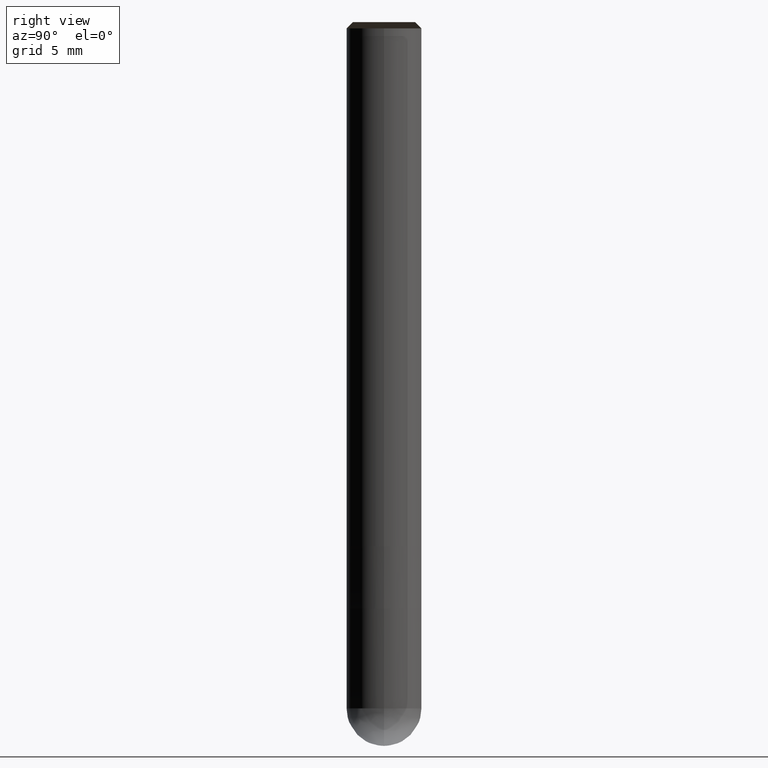
[diagram: clean part render]
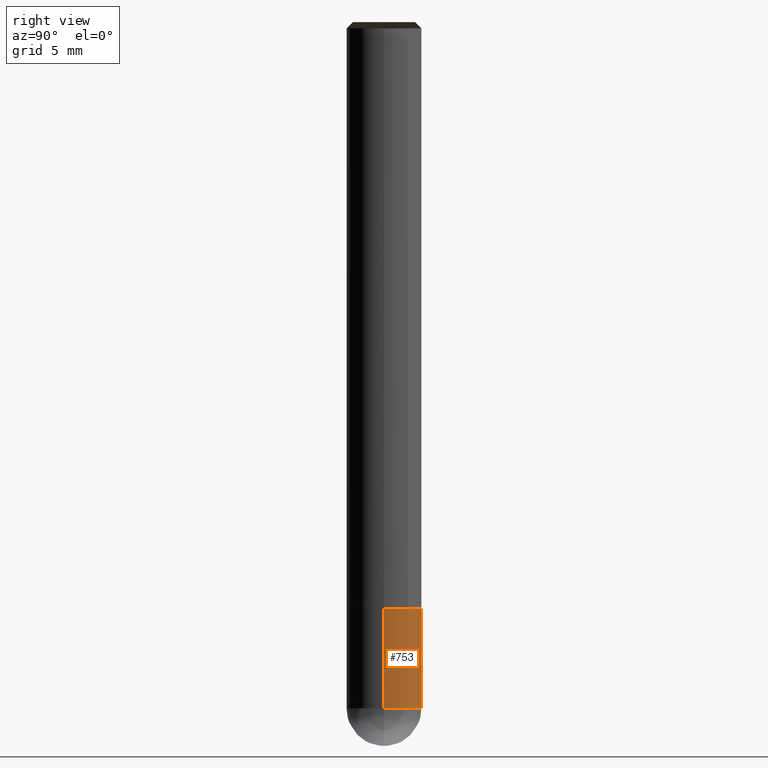
[diagram: same view with one face highlighted and labeled with its STEP entity id]
A machine part, right view. The second image highlights one B-rep face of the part: STEP entity #753.
In plain terms, the highlighted face is a freeform B-spline surface patch.
Its self-contained STEP definition (entity closure, byte-faithful):
#666=CARTESIAN_POINT('',(3.0,0.0,-13.0));
#667=CARTESIAN_POINT('',(3.0,3.0,-13.0));
#668=CARTESIAN_POINT('',(0.0,3.0,-13.0));
#669=CARTESIAN_POINT('',(-3.0,3.0,-13.0));
#670=CARTESIAN_POINT('',(-3.0,0.0,-13.0));
#671=CARTESIAN_POINT('',(3.0,0.0,-5.0));
#672=CARTESIAN_POINT('',(3.0,3.0,-5.0));
#673=CARTESIAN_POINT('',(0.0,3.0,-5.0));
#674=CARTESIAN_POINT('',(-3.0,3.0,-5.0));
#675=CARTESIAN_POINT('',(-3.0,0.0,-5.0));
#734=(
BOUNDED_SURFACE()
B_SPLINE_SURFACE(1,2,(
(#666,#667,#668,#669,#670),
(#671,#672,#673,#674,#675)
), .UNSPECIFIED.,.F.,.F.,.F.)
B_SPLINE_SURFACE_WITH_KNOTS((2,2),(3,2,3),(
0.0,1.0),(
0.0,0.5,1.0), .UNSPECIFIED.)
GEOMETRIC_REPRESENTATION_ITEM()
RATIONAL_B_SPLINE_SURFACE(((1.0,0.707106781187,1.0,0.707106781187,1.0),
(1.0,0.707106781187,1.0,0.707106781187,1.0)
))
REPRESENTATION_ITEM('')
SURFACE()
);
#735=(
BOUNDED_CURVE()
B_SPLINE_CURVE(2,(#670,#669,#668,#667,#666),.UNSPECIFIED.,.F.,.F.)
B_SPLINE_CURVE_WITH_KNOTS((3,2,3),
(0.0,0.5,1.0),.UNSPECIFIED.)
CURVE()
GEOMETRIC_REPRESENTATION_ITEM()
RATIONAL_B_SPLINE_CURVE((1.0,0.707106781187,1.0,0.707106781187,1.0))
REPRESENTATION_ITEM('')
);
#736=(
BOUNDED_CURVE()
B_SPLINE_CURVE(1,(#666,#671),.UNSPECIFIED.,.F.,.F.)
B_SPLINE_CURVE_WITH_KNOTS((2,2),
(0.0,1.0),.UNSPECIFIED.)
CURVE()
GEOMETRIC_REPRESENTATION_ITEM()
RATIONAL_B_SPLINE_CURVE((1.0,1.0))
REPRESENTATION_ITEM('')
);
#737=(
BOUNDED_CURVE()
B_SPLINE_CURVE(2,(#671,#672,#673,#674,#675),.UNSPECIFIED.,.F.,.F.)
B_SPLINE_CURVE_WITH_KNOTS((3,2,3),
(0.0,0.5,1.0),.UNSPECIFIED.)
CURVE()
GEOMETRIC_REPRESENTATION_ITEM()
RATIONAL_B_SPLINE_CURVE((1.0,0.707106781187,1.0,0.707106781187,1.0))
REPRESENTATION_ITEM('')
);
#738=(
BOUNDED_CURVE()
B_SPLINE_CURVE(1,(#675,#670),.UNSPECIFIED.,.F.,.F.)
B_SPLINE_CURVE_WITH_KNOTS((2,2),
(0.0,1.0),.UNSPECIFIED.)
CURVE()
GEOMETRIC_REPRESENTATION_ITEM()
RATIONAL_B_SPLINE_CURVE((1.0,1.0))
REPRESENTATION_ITEM('')
);
#739=VERTEX_POINT('',#666);
#740=VERTEX_POINT('',#670);
#741=VERTEX_POINT('',#671);
#742=VERTEX_POINT('',#675);
#743=EDGE_CURVE('',#740,#739,#735,.T.);
#744=EDGE_CURVE('',#739,#741,#736,.T.);
#745=EDGE_CURVE('',#741,#742,#737,.T.);
#746=EDGE_CURVE('',#742,#740,#738,.T.);
#747=ORIENTED_EDGE('',*,*,#743,.T.);
#748=ORIENTED_EDGE('',*,*,#744,.T.);
#749=ORIENTED_EDGE('',*,*,#745,.T.);
#750=ORIENTED_EDGE('',*,*,#746,.T.);
#751=EDGE_LOOP('',(#747,#748,#749,#750));
#752=FACE_OUTER_BOUND('',#751,.T.);
#753=ADVANCED_FACE('',(#752),#734,.T.);